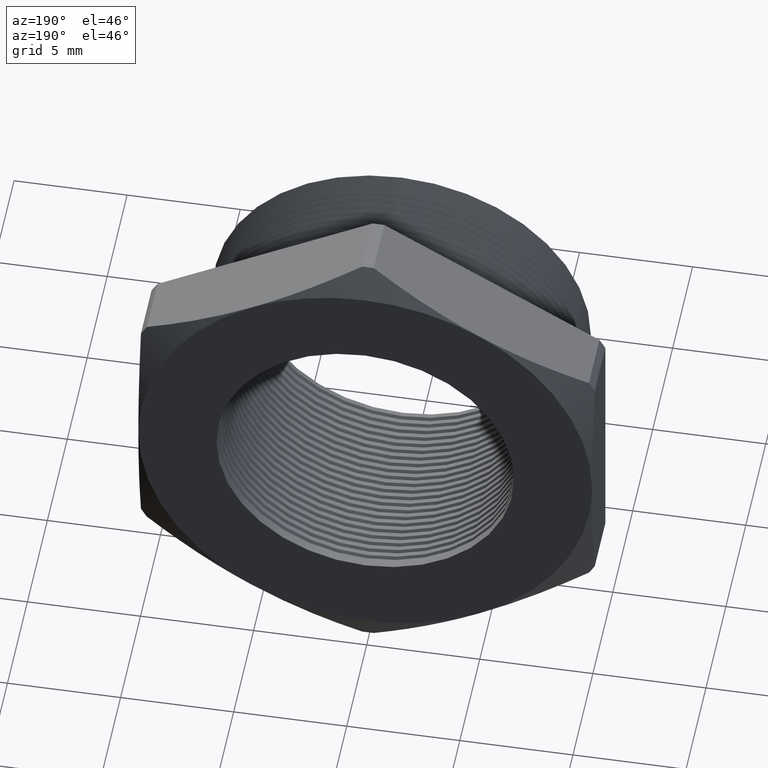
[diagram: clean part render]
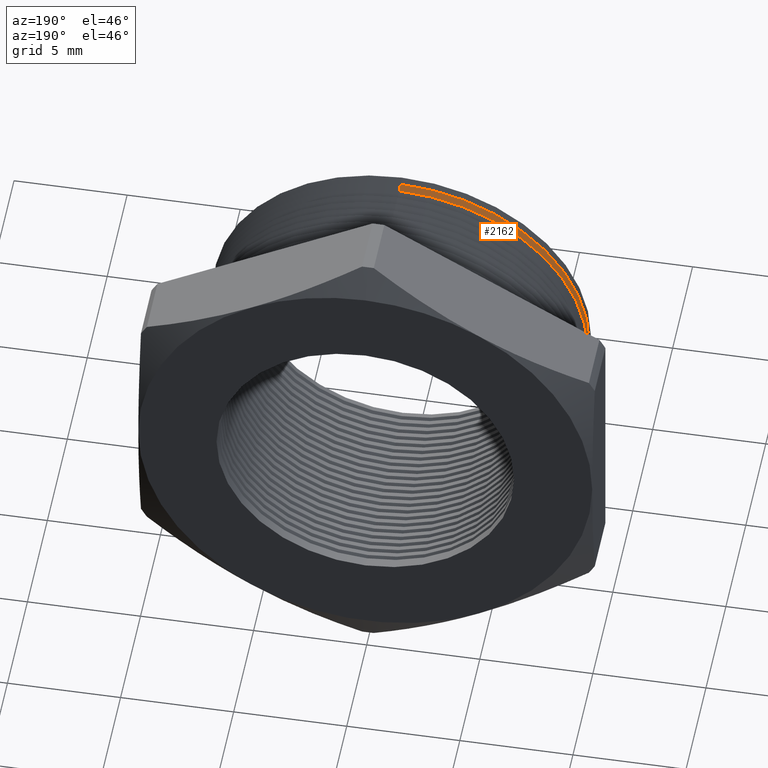
[diagram: same view with one face highlighted and labeled with its STEP entity id]
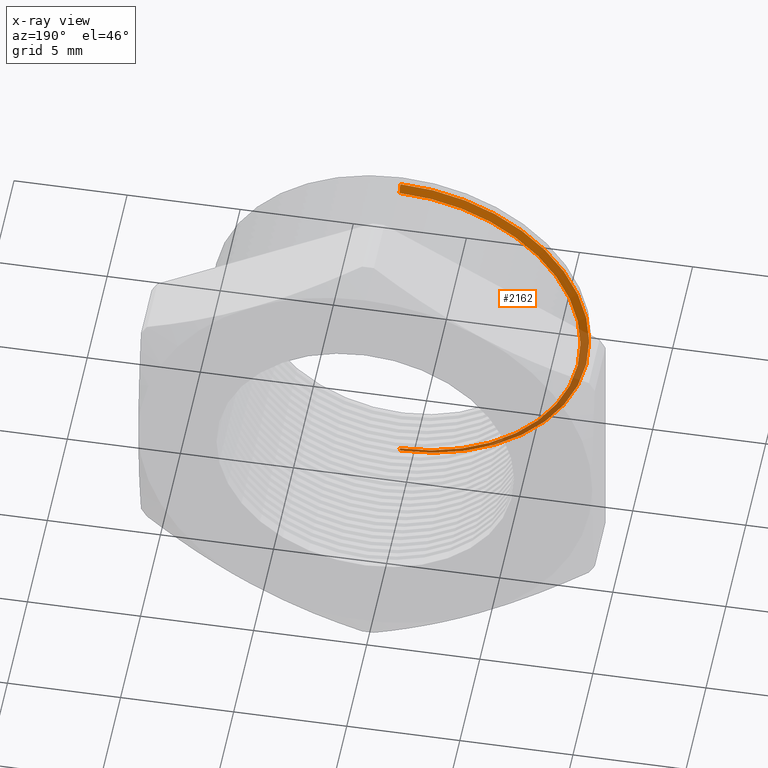
[diagram: x-ray of the same camera — body ghosted, the highlighted face saturated]
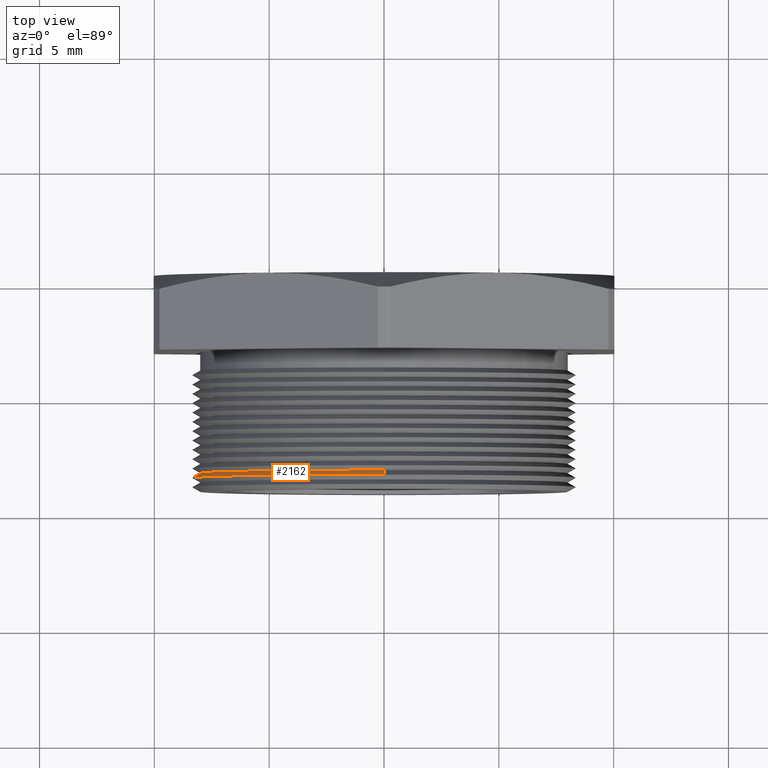
[diagram: same view with one face highlighted and labeled with its STEP entity id]
A machine part, auxiliary view. The second image highlights one B-rep face of the part: STEP entity #2162.
The next image is the same camera in x-ray: the body ghosted, the highlighted face saturated — about 28% of this face is hidden behind the body in this view.
A second angle (top view) of the same face is appended — the face is thin or edge-on in the first view.
In plain terms, the highlighted conical surface has half-angle 60 deg.
Its self-contained STEP definition (entity closure, byte-faithful):
#318 = EDGE_CURVE ( 'NONE', #6056, #6055, #1445, .T. ) ;
#1437 = DIRECTION ( 'NONE',  ( 0.0000000000000000000, 0.0000000000000000000, -1.000000000000000000 ) ) ;
#1438 = DIRECTION ( 'NONE',  ( 0.0000000000000000000, -1.000000000000000000, 0.0000000000000000000 ) ) ;
#1439 = CARTESIAN_POINT ( 'NONE',  ( 0.0000000000000000000, 0.06950724481000887500, 0.0000000000000000000 ) ) ;
#1440 = AXIS2_PLACEMENT_3D ( 'NONE', #1439, #1438, #1437 ) ;
#1445 = CIRCLE ( 'NONE', #1440, 0.3150000000000000000 ) ;
#2102 = ORIENTED_EDGE ( 'NONE', *, *, #6061, .T. ) ;
#2103 = ORIENTED_EDGE ( 'NONE', *, *, #2104, .T. ) ;
#2104 = EDGE_CURVE ( 'NONE', #6068, #6071, #2685, .T. ) ;
#2162 = ADVANCED_FACE ( 'NONE', ( #2801 ), #2797, .T. ) ;
#2163 = EDGE_LOOP ( 'NONE', ( #2164, #2176, #2102, #2103 ) ) ;
#2164 = ORIENTED_EDGE ( 'NONE', *, *, #6058, .F. ) ;
#2176 = ORIENTED_EDGE ( 'NONE', *, *, #318, .T. ) ;
#2681 = DIRECTION ( 'NONE',  ( 0.0000000000000000000, 0.0000000000000000000, 1.000000000000000000 ) ) ;
#2682 = DIRECTION ( 'NONE',  ( -0.0000000000000000000, 1.000000000000000000, -0.0000000000000000000 ) ) ;
#2683 = CARTESIAN_POINT ( 'NONE',  ( 0.0000000000000000000, 0.06155489058294796900, 0.0000000000000000000 ) ) ;
#2684 = AXIS2_PLACEMENT_3D ( 'NONE', #2683, #2682, #2681 ) ;
#2685 = CIRCLE ( 'NONE', #2684, 0.3287738815610546400 ) ;
#2792 = DIRECTION ( 'NONE',  ( 0.0000000000000000000, 0.0000000000000000000, -1.000000000000000000 ) ) ;
#2793 = DIRECTION ( 'NONE',  ( 0.0000000000000000000, -1.000000000000000000, 0.0000000000000000000 ) ) ;
#2794 = CARTESIAN_POINT ( 'NONE',  ( 0.0000000000000000000, 0.06950724481000887500, 0.0000000000000000000 ) ) ;
#2795 = AXIS2_PLACEMENT_3D ( 'NONE', #2794, #2793, #2792 ) ;
#2797 = CONICAL_SURFACE ( 'NONE', #2795, 0.3150000000000000000, 1.047197551196598700 ) ;
#2801 = FACE_OUTER_BOUND ( 'NONE', #2163, .T. ) ;
#4767 = LINE ( 'NONE', #4828, #4827 ) ;
#4768 = DIRECTION ( 'NONE',  ( 1.060575238724907500E-016, -0.4999999999999991100, 0.8660254037844391500 ) ) ;
#4769 = VECTOR ( 'NONE', #4768, 39.37007874015748100 ) ;
#4770 = CARTESIAN_POINT ( 'NONE',  ( 3.857637417314162700E-017, 0.06950724481000887500, 0.3150000000000000000 ) ) ;
#4771 = LINE ( 'NONE', #4770, #4769 ) ;
#4772 = CARTESIAN_POINT ( 'NONE',  ( 3.857637417314162700E-017, 0.06950724481000887500, 0.3150000000000000000 ) ) ;
#4773 = CARTESIAN_POINT ( 'NONE',  ( 0.0000000000000000000, 0.06950724481000887500, -0.3150000000000000000 ) ) ;
#4808 = CARTESIAN_POINT ( 'NONE',  ( 4.026318816969966200E-017, 0.06155489058294796900, 0.3287738815610546400 ) ) ;
#4814 = CARTESIAN_POINT ( 'NONE',  ( 0.0000000000000000000, 0.06155489058294796900, -0.3287738815610546400 ) ) ;
#4826 = DIRECTION ( 'NONE',  ( 0.0000000000000000000, -0.4999999999999991100, -0.8660254037844391500 ) ) ;
#4827 = VECTOR ( 'NONE', #4826, 39.37007874015748100 ) ;
#4828 = CARTESIAN_POINT ( 'NONE',  ( 0.0000000000000000000, 0.06950724481000887500, -0.3150000000000000000 ) ) ;
#6055 = VERTEX_POINT ( 'NONE', #4773 ) ;
#6056 = VERTEX_POINT ( 'NONE', #4772 ) ;
#6058 = EDGE_CURVE ( 'NONE', #6056, #6071, #4771, .T. ) ;
#6061 = EDGE_CURVE ( 'NONE', #6055, #6068, #4767, .T. ) ;
#6068 = VERTEX_POINT ( 'NONE', #4814 ) ;
#6071 = VERTEX_POINT ( 'NONE', #4808 ) ;